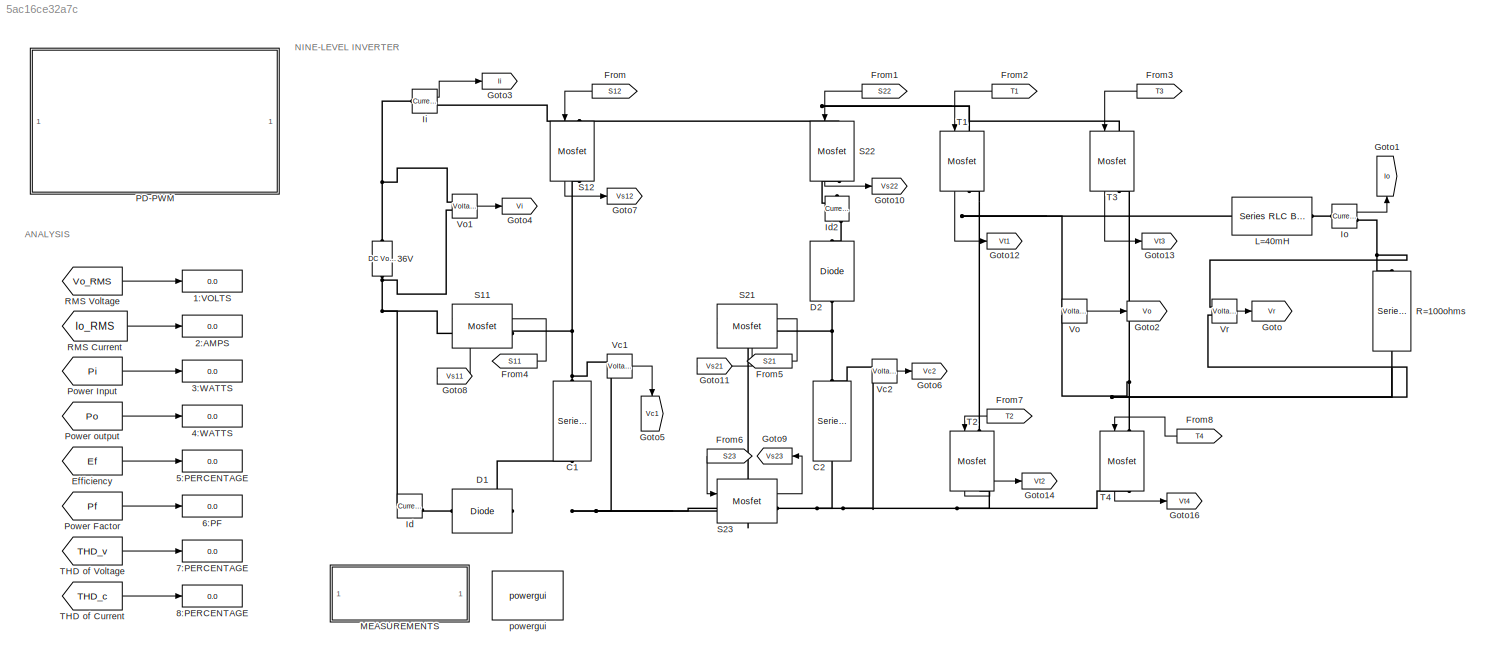
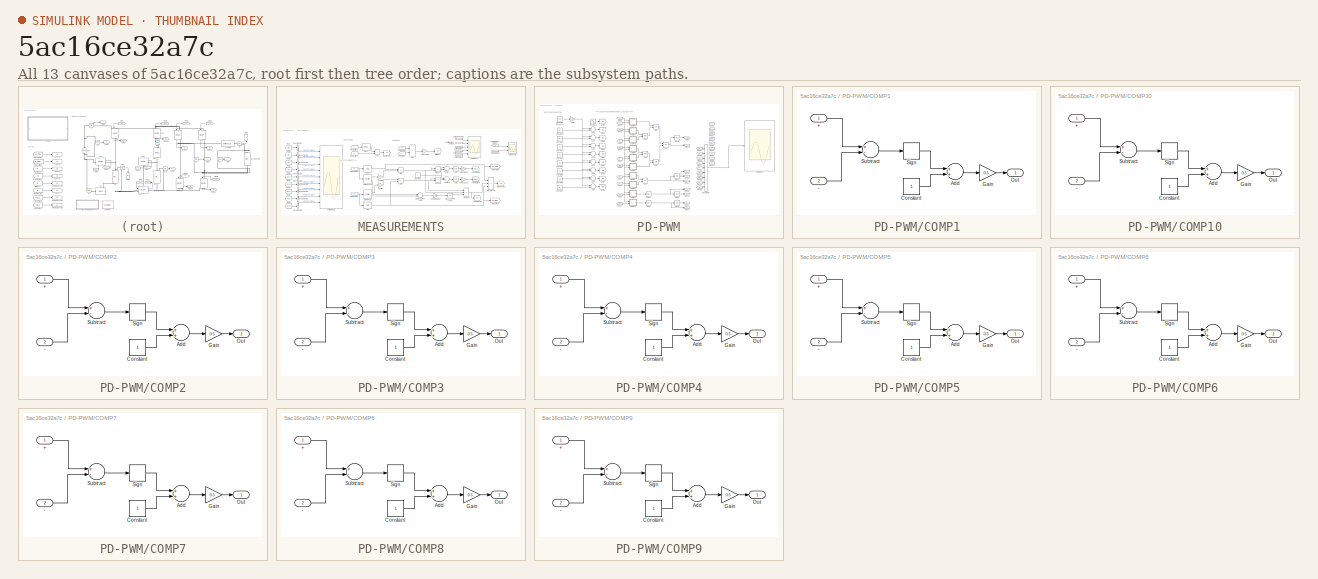
[diagram: thumbnail index - all 13 canvases of the model, root first then tree order]
MODEL slx_5ac16ce32a7c
KIND model
CONFIG AbsTol = auto
CONFIG FixedStep = auto
CONFIG MaxStep = auto
CONFIG MinStep = auto
CONFIG RelTol = 1e-3
CONFIG SampleTimeConstraint = Unconstrained
CONFIG Solver = VariableStepAuto
CONFIG SolverMode = Auto
CONFIG SolverName = VariableStepAuto
CONFIG StartTime = 0.0
CONFIG StopTime = 10
BLOCK [Display] 1:VOLTS
  Decimation = 1
  Ports = [1]
BLOCK [Display] 2:AMPS
  Decimation = 1
  Ports = [1]
BLOCK [Reference] 36V  REF=powerlib/Electrical
Sources/DC Voltage Source
  Ports = [0, 0, 0, 0, 0, 1, 1]
  SourceBlock = powerlib/Electrical\nSources/DC Voltage Source
  SourceType = DC Voltage Source
BLOCK [Display] 3:WATTS
  Decimation = 1
  Ports = [1]
BLOCK [Display] 4:WATTS
  Decimation = 1
  Ports = [1]
BLOCK [Display] 5:PERCENTAGE
  Decimation = 1
  Ports = [1]
BLOCK [Display] 6:PF
  Decimation = 1
  Ports = [1]
BLOCK [Display] 7:PERCENTAGE
  Decimation = 1
  Ports = [1]
BLOCK [Display] 8:PERCENTAGE
  Decimation = 1
  Ports = [1]
BLOCK [Reference] C1  REF=powerlib/Elements/Series RLC Branch
  Ports = [0, 0, 0, 0, 0, 1, 1]
  SourceBlock = powerlib/Elements/Series RLC Branch
  SourceType = Series RLC Branch
BLOCK [Reference] C2  REF=powerlib/Elements/Series RLC Branch
  Ports = [0, 0, 0, 0, 0, 1, 1]
  SourceBlock = powerlib/Elements/Series RLC Branch
  SourceType = Series RLC Branch
BLOCK [Reference] D1  REF=powerlib/Power
Electronics/Diode
  Ports = [0, 0, 0, 0, 0, 1, 1]
  SourceBlock = powerlib/Power\nElectronics/Diode
  SourceType = Diode
BLOCK [Reference] D2  REF=powerlib/Power
Electronics/Diode
  Ports = [0, 0, 0, 0, 0, 1, 1]
  SourceBlock = powerlib/Power\nElectronics/Diode
  SourceType = Diode
BLOCK [From] Efficiency
  GotoTag = Ef
  TagVisibility = global
BLOCK [From] From
  GotoTag = S12
  TagVisibility = global
BLOCK [From] From1
  GotoTag = S22
  TagVisibility = global
BLOCK [From] From2
  GotoTag = T1
  TagVisibility = global
BLOCK [From] From3
  GotoTag = T3
  TagVisibility = global
BLOCK [From] From4
  GotoTag = S11
  TagVisibility = global
BLOCK [From] From5
  GotoTag = S21
  TagVisibility = global
BLOCK [From] From6
  GotoTag = S23
  TagVisibility = global
BLOCK [From] From7
  GotoTag = T2
  TagVisibility = global
BLOCK [From] From8
  GotoTag = T4
  TagVisibility = global
BLOCK [Goto] Goto
  GotoTag = Vr
  TagVisibility = global
BLOCK [Goto] Goto1
  GotoTag = Io
  TagVisibility = global
BLOCK [Goto] Goto10
  GotoTag = Vs22
  TagVisibility = global
BLOCK [Goto] Goto11
  GotoTag = Vs21
  TagVisibility = global
BLOCK [Goto] Goto12
  GotoTag = Vt1
  TagVisibility = global
BLOCK [Goto] Goto13
  GotoTag = Vt3
  TagVisibility = global
BLOCK [Goto] Goto14
  GotoTag = Vt2
  TagVisibility = global
BLOCK [Goto] Goto16
  GotoTag = Vt4
  TagVisibility = global
BLOCK [Goto] Goto2
  GotoTag = Vo
  TagVisibility = global
BLOCK [Goto] Goto3
  GotoTag = Ii
  TagVisibility = global
BLOCK [Goto] Goto4
  GotoTag = Vi
  TagVisibility = global
BLOCK [Goto] Goto5
  GotoTag = Vc1
  TagVisibility = global
BLOCK [Goto] Goto6
  GotoTag = Vc2
  TagVisibility = global
BLOCK [Goto] Goto7
  GotoTag = Vs12
  TagVisibility = global
BLOCK [Goto] Goto8
  GotoTag = Vs11
  TagVisibility = global
BLOCK [Goto] Goto9
  GotoTag = Vs23
  TagVisibility = global
BLOCK [Reference] Id  REF=powerlib/Measurements/Current Measurement
  Ports = [0, 1, 0, 0, 0, 1, 1]
  SourceBlock = powerlib/Measurements/Current Measurement
  SourceType = Current Measurement
  UserDataPersistent = on
BLOCK [Reference] Id2  REF=powerlib/Measurements/Current Measurement
  Ports = [0, 1, 0, 0, 0, 1, 1]
  SourceBlock = powerlib/Measurements/Current Measurement
  SourceType = Current Measurement
  UserDataPersistent = on
BLOCK [Reference] Ii  REF=powerlib/Measurements/Current Measurement
  Ports = [0, 1, 0, 0, 0, 1, 1]
  SourceBlock = powerlib/Measurements/Current Measurement
  SourceType = Current Measurement
  UserDataPersistent = on
BLOCK [Reference] Io  REF=powerlib/Measurements/Current Measurement
  Ports = [0, 1, 0, 0, 0, 1, 1]
  SourceBlock = powerlib/Measurements/Current Measurement
  SourceType = Current Measurement
  UserDataPersistent = on
BLOCK [Reference] L=40mH  REF=powerlib/Elements/Series RLC Branch
  Ports = [0, 0, 0, 0, 0, 1, 1]
  SourceBlock = powerlib/Elements/Series RLC Branch
  SourceType = Series RLC Branch
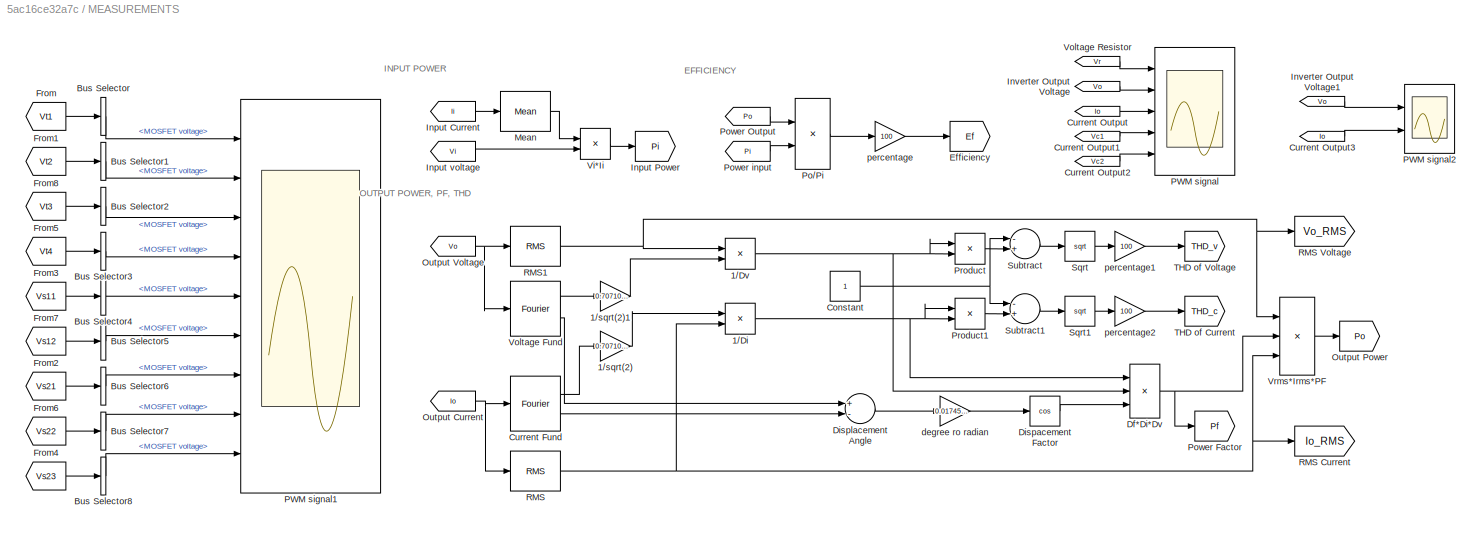
BLOCK [SubSystem] MEASUREMENTS
  Ports = []
  RequestExecContextInheritance = off
  Variant = off
BLOCK [Product] MEASUREMENTS/1//Di
  InputSameDT = off
  Inputs = /*
  OutDataTypeStr = Inherit: Inherit via internal rule
  Ports = [2, 1]
  RndMeth = Floor
  SaturateOnIntegerOverflow = off
BLOCK [Product] MEASUREMENTS/1//Dv
  InputSameDT = off
  Inputs = */
  OutDataTypeStr = Inherit: Inherit via internal rule
  Ports = [2, 1]
  RndMeth = Floor
  SaturateOnIntegerOverflow = off
BLOCK [Gain] MEASUREMENTS/1//sqrt(2)
  Gain = 0.70710678
  OutDataTypeStr = Inherit: Inherit via internal rule
  ParamDataTypeStr = Inherit: Inherit via internal rule
  SaturateOnIntegerOverflow = off
BLOCK [Gain] MEASUREMENTS/1//sqrt(2)1
  Gain = 0.70710678
  OutDataTypeStr = Inherit: Inherit via internal rule
  ParamDataTypeStr = Inherit: Inherit via internal rule
  SaturateOnIntegerOverflow = off
BLOCK [BusSelector] MEASUREMENTS/Bus Selector
  OutputSignals = MOSFET voltage
  Ports = [1, 1]
BLOCK [BusSelector] MEASUREMENTS/Bus Selector1
  OutputSignals = MOSFET voltage
  Ports = [1, 1]
BLOCK [BusSelector] MEASUREMENTS/Bus Selector2
  OutputSignals = MOSFET voltage
  Ports = [1, 1]
BLOCK [BusSelector] MEASUREMENTS/Bus Selector3
  OutputSignals = MOSFET voltage
  Ports = [1, 1]
BLOCK [BusSelector] MEASUREMENTS/Bus Selector4
  OutputSignals = MOSFET voltage
  Ports = [1, 1]
BLOCK [BusSelector] MEASUREMENTS/Bus Selector5
  OutputSignals = MOSFET voltage
  Ports = [1, 1]
BLOCK [BusSelector] MEASUREMENTS/Bus Selector6
  OutputSignals = MOSFET voltage
  Ports = [1, 1]
BLOCK [BusSelector] MEASUREMENTS/Bus Selector7
  OutputSignals = MOSFET voltage
  Ports = [1, 1]
BLOCK [BusSelector] MEASUREMENTS/Bus Selector8
  OutputSignals = MOSFET voltage
  Ports = [1, 1]
BLOCK [Constant] MEASUREMENTS/Constant
BLOCK [Reference] MEASUREMENTS/Current Fund  REF=powerlib_meascontrol/Measurements/Fourier
  Ports = [1, 2]
  SourceBlock = powerlib_meascontrol/Measurements/Fourier
  SourceType = Fourier
BLOCK [From] MEASUREMENTS/Current Output
  GotoTag = Io
  TagVisibility = global
BLOCK [From] MEASUREMENTS/Current Output1
  GotoTag = Vc1
  TagVisibility = global
BLOCK [From] MEASUREMENTS/Current Output2
  GotoTag = Vc2
  TagVisibility = global
BLOCK [From] MEASUREMENTS/Current Output3
  GotoTag = Io
  TagVisibility = global
BLOCK [Product] MEASUREMENTS/Df*Di*Dv
  InputSameDT = off
  Inputs = //*
  OutDataTypeStr = Inherit: Inherit via internal rule
  Ports = [3, 1]
  RndMeth = Floor
  SaturateOnIntegerOverflow = off
BLOCK [Trigonometry] MEASUREMENTS/Dispacement Factor
  Operator = cos
  Ports = [1, 1]
BLOCK [Sum] MEASUREMENTS/Displacement Angle
  InputSameDT = off
  Inputs = +-
  OutDataTypeStr = Inherit: Inherit via internal rule
  Ports = [2, 1]
  SaturateOnIntegerOverflow = off
BLOCK [Goto] MEASUREMENTS/Efficiency
  GotoTag = Ef
  TagVisibility = global
BLOCK [From] MEASUREMENTS/From
  GotoTag = Vt1
  TagVisibility = global
BLOCK [From] MEASUREMENTS/From1
  GotoTag = Vt2
  TagVisibility = global
BLOCK [From] MEASUREMENTS/From2
  GotoTag = Vs21
  TagVisibility = global
BLOCK [From] MEASUREMENTS/From3
  GotoTag = Vs11
  TagVisibility = global
BLOCK [From] MEASUREMENTS/From4
  GotoTag = Vs23
  TagVisibility = global
BLOCK [From] MEASUREMENTS/From5
  GotoTag = Vt4
  TagVisibility = global
BLOCK [From] MEASUREMENTS/From6
  GotoTag = Vs22
  TagVisibility = global
BLOCK [From] MEASUREMENTS/From7
  GotoTag = Vs12
  TagVisibility = global
BLOCK [From] MEASUREMENTS/From8
  GotoTag = Vt3
  TagVisibility = global
BLOCK [From] MEASUREMENTS/Input Current
  GotoTag = Ii
  TagVisibility = global
BLOCK [Goto] MEASUREMENTS/Input Power
  GotoTag = Pi
  TagVisibility = global
BLOCK [From] MEASUREMENTS/Input voltage
  GotoTag = Vi
  TagVisibility = global
BLOCK [From] MEASUREMENTS/Inverter Output Voltage
  GotoTag = Vo
  TagVisibility = global
BLOCK [From] MEASUREMENTS/Inverter Output Voltage1
  GotoTag = Vo
  TagVisibility = global
BLOCK [Reference] MEASUREMENTS/Mean  REF=powerlib_meascontrol/Measurements/Mean
  Ports = [1, 1]
  SourceBlock = powerlib_meascontrol/Measurements/Mean
  SourceType = Mean
BLOCK [From] MEASUREMENTS/Output Current
  GotoTag = Io
  TagVisibility = global
BLOCK [Goto] MEASUREMENTS/Output Power
  GotoTag = Po
  TagVisibility = global
BLOCK [From] MEASUREMENTS/Output Voltage
  GotoTag = Vo
  TagVisibility = global
BLOCK [Scope] MEASUREMENTS/PWM signal
  NumInputPorts = 5
  Ports = [5]
  ScopeSpecificationString = Simulink.scopes.TimeScopeBlockCfg('CurrentConfiguration', extmgr.ConfigurationSet(extmgr.Configuration('Core','General UI',true,'FigureColor',[1 1 1]),extmgr.Configuration('Core','Source UI',true),extmgr.Configuration('Sources','WiredSimulink',true,'DataLoggingVariableName','ffy'),extmgr.Configuration('Visuals','Time Domain',true,'SerializedDisplays',{struct('MinYLimReal','-171.77772','MaxYLimReal...<+4877ch>
BLOCK [Scope] MEASUREMENTS/PWM signal1
  NumInputPorts = 9
  Ports = [9]
  ScopeSpecificationString = Simulink.scopes.TimeScopeBlockCfg('CurrentConfiguration', extmgr.ConfigurationSet(extmgr.Configuration('Core','General UI',true,'FigureColor',[1 1 1]),extmgr.Configuration('Core','Source UI',true),extmgr.Configuration('Sources','WiredSimulink',true,'DataLoggingVariableName','ScopeData1'),extmgr.Configuration('Visuals','Time Domain',true,'SerializedDisplays',{struct('MinYLimReal','-17.54283','MaxYL...<+8087ch>
BLOCK [Scope] MEASUREMENTS/PWM signal2
  NumInputPorts = 2
  Ports = [2]
  ScopeSpecificationString = Simulink.scopes.TimeScopeBlockCfg('CurrentConfiguration', extmgr.ConfigurationSet(extmgr.Configuration('Core','General UI',true,'FigureColor',[1 1 1]),extmgr.Configuration('Core','Source UI',true),extmgr.Configuration('Sources','WiredSimulink',true,'DataLoggingVariableName','FFT','DataLogging',true),extmgr.Configuration('Visuals','Time Domain',true,'SerializedDisplays',{struct('MinYLimReal','-174....<+2389ch>
BLOCK [Product] MEASUREMENTS/Po//Pi
  InputSameDT = off
  Inputs = */
  OutDataTypeStr = Inherit: Inherit via internal rule
  Ports = [2, 1]
  RndMeth = Floor
  SaturateOnIntegerOverflow = off
BLOCK [Goto] MEASUREMENTS/Power Factor
  GotoTag = Pf
  TagVisibility = global
BLOCK [From] MEASUREMENTS/Power Output
  GotoTag = Po
  TagVisibility = global
BLOCK [From] MEASUREMENTS/Power input
  GotoTag = Pi
  TagVisibility = global
BLOCK [Product] MEASUREMENTS/Product
  InputSameDT = off
  OutDataTypeStr = Inherit: Inherit via internal rule
  Ports = [2, 1]
  RndMeth = Floor
  SaturateOnIntegerOverflow = off
BLOCK [Product] MEASUREMENTS/Product1
  InputSameDT = off
  OutDataTypeStr = Inherit: Inherit via internal rule
  Ports = [2, 1]
  RndMeth = Floor
  SaturateOnIntegerOverflow = off
BLOCK [Reference] MEASUREMENTS/RMS  REF=powerlib_meascontrol/Measurements/RMS
  Ports = [1, 1]
  SourceBlock = powerlib_meascontrol/Measurements/RMS
  SourceType = RMS
BLOCK [Goto] MEASUREMENTS/RMS Current
  GotoTag = Io_RMS
  TagVisibility = global
BLOCK [Goto] MEASUREMENTS/RMS Voltage
  GotoTag = Vo_RMS
  TagVisibility = global
BLOCK [Reference] MEASUREMENTS/RMS1  REF=powerlib_meascontrol/Measurements/RMS
  Ports = [1, 1]
  SourceBlock = powerlib_meascontrol/Measurements/RMS
  SourceType = RMS
BLOCK [Sqrt] MEASUREMENTS/Sqrt
BLOCK [Sqrt] MEASUREMENTS/Sqrt1
BLOCK [Sum] MEASUREMENTS/Subtract
  InputSameDT = off
  Inputs = -+
  OutDataTypeStr = Inherit: Inherit via internal rule
  Ports = [2, 1]
  SaturateOnIntegerOverflow = off
BLOCK [Sum] MEASUREMENTS/Subtract1
  InputSameDT = off
  Inputs = -+
  OutDataTypeStr = Inherit: Inherit via internal rule
  Ports = [2, 1]
  SaturateOnIntegerOverflow = off
BLOCK [Goto] MEASUREMENTS/THD of Current
  GotoTag = THD_c
  TagVisibility = global
BLOCK [Goto] MEASUREMENTS/THD of Voltage
  GotoTag = THD_v
  TagVisibility = global
BLOCK [Product] MEASUREMENTS/Vi*Ii
  InputSameDT = off
  OutDataTypeStr = Inherit: Inherit via internal rule
  Ports = [2, 1]
  RndMeth = Floor
  SaturateOnIntegerOverflow = off
BLOCK [Reference] MEASUREMENTS/Voltage Fund  REF=powerlib_meascontrol/Measurements/Fourier
  Ports = [1, 2]
  SourceBlock = powerlib_meascontrol/Measurements/Fourier
  SourceType = Fourier
BLOCK [From] MEASUREMENTS/Voltage Resistor
  GotoTag = Vr
  TagVisibility = global
BLOCK [Product] MEASUREMENTS/Vrms*Irms*PF
  InputSameDT = off
  Inputs = 3
  OutDataTypeStr = Inherit: Inherit via internal rule
  Ports = [3, 1]
  RndMeth = Floor
  SaturateOnIntegerOverflow = off
BLOCK [Gain] MEASUREMENTS/degree ro radian
  Gain = 0.01745329252
  OutDataTypeStr = Inherit: Inherit via internal rule
  ParamDataTypeStr = Inherit: Inherit via internal rule
  SaturateOnIntegerOverflow = off
BLOCK [Gain] MEASUREMENTS/percentage
  Gain = 100
  OutDataTypeStr = Inherit: Inherit via internal rule
  ParamDataTypeStr = Inherit: Inherit via internal rule
  SaturateOnIntegerOverflow = off
BLOCK [Gain] MEASUREMENTS/percentage1
  Gain = 100
  OutDataTypeStr = Inherit: Inherit via internal rule
  ParamDataTypeStr = Inherit: Inherit via internal rule
  SaturateOnIntegerOverflow = off
BLOCK [Gain] MEASUREMENTS/percentage2
  Gain = 100
  OutDataTypeStr = Inherit: Inherit via internal rule
  ParamDataTypeStr = Inherit: Inherit via internal rule
  SaturateOnIntegerOverflow = off
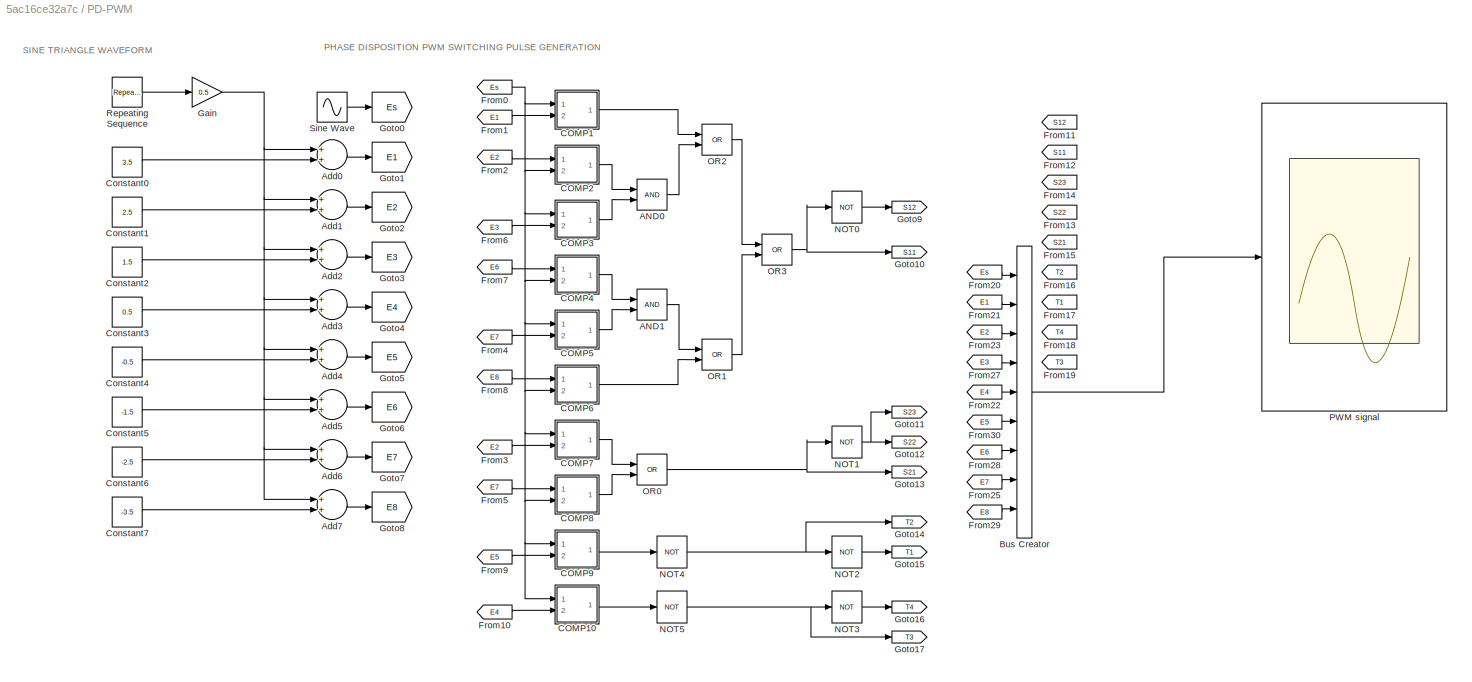
BLOCK [SubSystem] PD-PWM
  Ports = []
  RequestExecContextInheritance = off
  Variant = off
BLOCK [Logic] PD-PWM/AND0
  AllPortsSameDT = off
  OutDataTypeStr = boolean
  Ports = [2, 1]
BLOCK [Logic] PD-PWM/AND1
  AllPortsSameDT = off
  OutDataTypeStr = boolean
  Ports = [2, 1]
BLOCK [Sum] PD-PWM/Add0
  InputSameDT = off
  OutDataTypeStr = Inherit: Inherit via internal rule
  Ports = [2, 1]
  SaturateOnIntegerOverflow = off
BLOCK [Sum] PD-PWM/Add1
  InputSameDT = off
  OutDataTypeStr = Inherit: Inherit via internal rule
  Ports = [2, 1]
  SaturateOnIntegerOverflow = off
BLOCK [Sum] PD-PWM/Add2
  InputSameDT = off
  OutDataTypeStr = Inherit: Inherit via internal rule
  Ports = [2, 1]
  SaturateOnIntegerOverflow = off
BLOCK [Sum] PD-PWM/Add3
  InputSameDT = off
  OutDataTypeStr = Inherit: Inherit via internal rule
  Ports = [2, 1]
  SaturateOnIntegerOverflow = off
BLOCK [Sum] PD-PWM/Add4
  InputSameDT = off
  OutDataTypeStr = Inherit: Inherit via internal rule
  Ports = [2, 1]
  SaturateOnIntegerOverflow = off
BLOCK [Sum] PD-PWM/Add5
  InputSameDT = off
  OutDataTypeStr = Inherit: Inherit via internal rule
  Ports = [2, 1]
  SaturateOnIntegerOverflow = off
BLOCK [Sum] PD-PWM/Add6
  InputSameDT = off
  OutDataTypeStr = Inherit: Inherit via internal rule
  Ports = [2, 1]
  SaturateOnIntegerOverflow = off
BLOCK [Sum] PD-PWM/Add7
  InputSameDT = off
  OutDataTypeStr = Inherit: Inherit via internal rule
  Ports = [2, 1]
  SaturateOnIntegerOverflow = off
BLOCK [BusCreator] PD-PWM/Bus Creator
  DisplayOption = bar
  InheritFromInputs = on
  Inputs = 9
  Ports = [9, 1]
BLOCK [SubSystem] PD-PWM/COMP1
  Ports = [2, 1]
  RequestExecContextInheritance = off
  Variant = off
BLOCK [Inport] PD-PWM/COMP1/+
  IconDisplay = Port number
BLOCK [Inport] PD-PWM/COMP1/-
  IconDisplay = Port number
  Port = 2
BLOCK [Sum] PD-PWM/COMP1/Add
  InputSameDT = off
  OutDataTypeStr = Inherit: Inherit via internal rule
  Ports = [2, 1]
  SaturateOnIntegerOverflow = off
BLOCK [Constant] PD-PWM/COMP1/Constant
BLOCK [Gain] PD-PWM/COMP1/Gain
  Gain = 0.5
  OutDataTypeStr = Inherit: Inherit via internal rule
  ParamDataTypeStr = Inherit: Inherit via internal rule
  SaturateOnIntegerOverflow = off
BLOCK [Outport] PD-PWM/COMP1/Out
  IconDisplay = Port number
BLOCK [Signum] PD-PWM/COMP1/Sign
BLOCK [Sum] PD-PWM/COMP1/Subtract
  InputSameDT = off
  Inputs = +-
  OutDataTypeStr = Inherit: Inherit via internal rule
  Ports = [2, 1]
  SaturateOnIntegerOverflow = off
BLOCK [SubSystem] PD-PWM/COMP10
  Ports = [2, 1]
  RequestExecContextInheritance = off
  Variant = off
BLOCK [Inport] PD-PWM/COMP10/+
  IconDisplay = Port number
BLOCK [Inport] PD-PWM/COMP10/-
  IconDisplay = Port number
  Port = 2
BLOCK [Sum] PD-PWM/COMP10/Add
  InputSameDT = off
  OutDataTypeStr = Inherit: Inherit via internal rule
  Ports = [2, 1]
  SaturateOnIntegerOverflow = off
BLOCK [Constant] PD-PWM/COMP10/Constant
BLOCK [Gain] PD-PWM/COMP10/Gain
  Gain = 0.5
  OutDataTypeStr = Inherit: Inherit via internal rule
  ParamDataTypeStr = Inherit: Inherit via internal rule
  SaturateOnIntegerOverflow = off
BLOCK [Outport] PD-PWM/COMP10/Out
  IconDisplay = Port number
BLOCK [Signum] PD-PWM/COMP10/Sign
BLOCK [Sum] PD-PWM/COMP10/Subtract
  InputSameDT = off
  Inputs = +-
  OutDataTypeStr = Inherit: Inherit via internal rule
  Ports = [2, 1]
  SaturateOnIntegerOverflow = off
BLOCK [SubSystem] PD-PWM/COMP2
  Ports = [2, 1]
  RequestExecContextInheritance = off
  Variant = off
BLOCK [Inport] PD-PWM/COMP2/+
  IconDisplay = Port number
BLOCK [Inport] PD-PWM/COMP2/-
  IconDisplay = Port number
  Port = 2
BLOCK [Sum] PD-PWM/COMP2/Add
  InputSameDT = off
  OutDataTypeStr = Inherit: Inherit via internal rule
  Ports = [2, 1]
  SaturateOnIntegerOverflow = off
BLOCK [Constant] PD-PWM/COMP2/Constant
BLOCK [Gain] PD-PWM/COMP2/Gain
  Gain = 0.5
  OutDataTypeStr = Inherit: Inherit via internal rule
  ParamDataTypeStr = Inherit: Inherit via internal rule
  SaturateOnIntegerOverflow = off
BLOCK [Outport] PD-PWM/COMP2/Out
  IconDisplay = Port number
BLOCK [Signum] PD-PWM/COMP2/Sign
BLOCK [Sum] PD-PWM/COMP2/Subtract
  InputSameDT = off
  Inputs = +-
  OutDataTypeStr = Inherit: Inherit via internal rule
  Ports = [2, 1]
  SaturateOnIntegerOverflow = off
BLOCK [SubSystem] PD-PWM/COMP3
  Ports = [2, 1]
  RequestExecContextInheritance = off
  Variant = off
BLOCK [Inport] PD-PWM/COMP3/+
  IconDisplay = Port number
BLOCK [Inport] PD-PWM/COMP3/-
  IconDisplay = Port number
  Port = 2
BLOCK [Sum] PD-PWM/COMP3/Add
  InputSameDT = off
  OutDataTypeStr = Inherit: Inherit via internal rule
  Ports = [2, 1]
  SaturateOnIntegerOverflow = off
BLOCK [Constant] PD-PWM/COMP3/Constant
BLOCK [Gain] PD-PWM/COMP3/Gain
  Gain = 0.5
  OutDataTypeStr = Inherit: Inherit via internal rule
  ParamDataTypeStr = Inherit: Inherit via internal rule
  SaturateOnIntegerOverflow = off
BLOCK [Outport] PD-PWM/COMP3/Out
  IconDisplay = Port number
BLOCK [Signum] PD-PWM/COMP3/Sign
BLOCK [Sum] PD-PWM/COMP3/Subtract
  InputSameDT = off
  Inputs = +-
  OutDataTypeStr = Inherit: Inherit via internal rule
  Ports = [2, 1]
  SaturateOnIntegerOverflow = off
BLOCK [SubSystem] PD-PWM/COMP4
  Ports = [2, 1]
  RequestExecContextInheritance = off
  Variant = off
BLOCK [Inport] PD-PWM/COMP4/+
  IconDisplay = Port number
BLOCK [Inport] PD-PWM/COMP4/-
  IconDisplay = Port number
  Port = 2
BLOCK [Sum] PD-PWM/COMP4/Add
  InputSameDT = off
  OutDataTypeStr = Inherit: Inherit via internal rule
  Ports = [2, 1]
  SaturateOnIntegerOverflow = off
BLOCK [Constant] PD-PWM/COMP4/Constant
BLOCK [Gain] PD-PWM/COMP4/Gain
  Gain = 0.5
  OutDataTypeStr = Inherit: Inherit via internal rule
  ParamDataTypeStr = Inherit: Inherit via internal rule
  SaturateOnIntegerOverflow = off
BLOCK [Outport] PD-PWM/COMP4/Out
  IconDisplay = Port number
BLOCK [Signum] PD-PWM/COMP4/Sign
BLOCK [Sum] PD-PWM/COMP4/Subtract
  InputSameDT = off
  Inputs = +-
  OutDataTypeStr = Inherit: Inherit via internal rule
  Ports = [2, 1]
  SaturateOnIntegerOverflow = off
BLOCK [SubSystem] PD-PWM/COMP5
  Ports = [2, 1]
  RequestExecContextInheritance = off
  Variant = off
BLOCK [Inport] PD-PWM/COMP5/+
  IconDisplay = Port number
BLOCK [Inport] PD-PWM/COMP5/-
  IconDisplay = Port number
  Port = 2
BLOCK [Sum] PD-PWM/COMP5/Add
  InputSameDT = off
  OutDataTypeStr = Inherit: Inherit via internal rule
  Ports = [2, 1]
  SaturateOnIntegerOverflow = off
BLOCK [Constant] PD-PWM/COMP5/Constant
BLOCK [Gain] PD-PWM/COMP5/Gain
  Gain = 0.5
  OutDataTypeStr = Inherit: Inherit via internal rule
  ParamDataTypeStr = Inherit: Inherit via internal rule
  SaturateOnIntegerOverflow = off
BLOCK [Outport] PD-PWM/COMP5/Out
  IconDisplay = Port number
BLOCK [Signum] PD-PWM/COMP5/Sign
BLOCK [Sum] PD-PWM/COMP5/Subtract
  InputSameDT = off
  Inputs = +-
  OutDataTypeStr = Inherit: Inherit via internal rule
  Ports = [2, 1]
  SaturateOnIntegerOverflow = off
BLOCK [SubSystem] PD-PWM/COMP6
  Ports = [2, 1]
  RequestExecContextInheritance = off
  Variant = off
BLOCK [Inport] PD-PWM/COMP6/+
  IconDisplay = Port number
BLOCK [Inport] PD-PWM/COMP6/-
  IconDisplay = Port number
  Port = 2
BLOCK [Sum] PD-PWM/COMP6/Add
  InputSameDT = off
  OutDataTypeStr = Inherit: Inherit via internal rule
  Ports = [2, 1]
  SaturateOnIntegerOverflow = off
BLOCK [Constant] PD-PWM/COMP6/Constant
BLOCK [Gain] PD-PWM/COMP6/Gain
  Gain = 0.5
  OutDataTypeStr = Inherit: Inherit via internal rule
  ParamDataTypeStr = Inherit: Inherit via internal rule
  SaturateOnIntegerOverflow = off
BLOCK [Outport] PD-PWM/COMP6/Out
  IconDisplay = Port number
BLOCK [Signum] PD-PWM/COMP6/Sign
BLOCK [Sum] PD-PWM/COMP6/Subtract
  InputSameDT = off
  Inputs = +-
  OutDataTypeStr = Inherit: Inherit via internal rule
  Ports = [2, 1]
  SaturateOnIntegerOverflow = off
BLOCK [SubSystem] PD-PWM/COMP7
  Ports = [2, 1]
  RequestExecContextInheritance = off
  Variant = off
BLOCK [Inport] PD-PWM/COMP7/+
  IconDisplay = Port number
BLOCK [Inport] PD-PWM/COMP7/-
  IconDisplay = Port number
  Port = 2
BLOCK [Sum] PD-PWM/COMP7/Add
  InputSameDT = off
  OutDataTypeStr = Inherit: Inherit via internal rule
  Ports = [2, 1]
  SaturateOnIntegerOverflow = off
BLOCK [Constant] PD-PWM/COMP7/Constant
BLOCK [Gain] PD-PWM/COMP7/Gain
  Gain = 0.5
  OutDataTypeStr = Inherit: Inherit via internal rule
  ParamDataTypeStr = Inherit: Inherit via internal rule
  SaturateOnIntegerOverflow = off
BLOCK [Outport] PD-PWM/COMP7/Out
  IconDisplay = Port number
BLOCK [Signum] PD-PWM/COMP7/Sign
BLOCK [Sum] PD-PWM/COMP7/Subtract
  InputSameDT = off
  Inputs = +-
  OutDataTypeStr = Inherit: Inherit via internal rule
  Ports = [2, 1]
  SaturateOnIntegerOverflow = off
BLOCK [SubSystem] PD-PWM/COMP8
  Ports = [2, 1]
  RequestExecContextInheritance = off
  Variant = off
BLOCK [Inport] PD-PWM/COMP8/+
  IconDisplay = Port number
BLOCK [Inport] PD-PWM/COMP8/-
  IconDisplay = Port number
  Port = 2
BLOCK [Sum] PD-PWM/COMP8/Add
  InputSameDT = off
  OutDataTypeStr = Inherit: Inherit via internal rule
  Ports = [2, 1]
  SaturateOnIntegerOverflow = off
BLOCK [Constant] PD-PWM/COMP8/Constant
BLOCK [Gain] PD-PWM/COMP8/Gain
  Gain = 0.5
  OutDataTypeStr = Inherit: Inherit via internal rule
  ParamDataTypeStr = Inherit: Inherit via internal rule
  SaturateOnIntegerOverflow = off
BLOCK [Outport] PD-PWM/COMP8/Out
  IconDisplay = Port number
BLOCK [Signum] PD-PWM/COMP8/Sign
BLOCK [Sum] PD-PWM/COMP8/Subtract
  InputSameDT = off
  Inputs = +-
  OutDataTypeStr = Inherit: Inherit via internal rule
  Ports = [2, 1]
  SaturateOnIntegerOverflow = off
BLOCK [SubSystem] PD-PWM/COMP9
  Ports = [2, 1]
  RequestExecContextInheritance = off
  Variant = off
BLOCK [Inport] PD-PWM/COMP9/+
  IconDisplay = Port number
BLOCK [Inport] PD-PWM/COMP9/-
  IconDisplay = Port number
  Port = 2
BLOCK [Sum] PD-PWM/COMP9/Add
  InputSameDT = off
  OutDataTypeStr = Inherit: Inherit via internal rule
  Ports = [2, 1]
  SaturateOnIntegerOverflow = off
BLOCK [Constant] PD-PWM/COMP9/Constant
BLOCK [Gain] PD-PWM/COMP9/Gain
  Gain = 0.5
  OutDataTypeStr = Inherit: Inherit via internal rule
  ParamDataTypeStr = Inherit: Inherit via internal rule
  SaturateOnIntegerOverflow = off
BLOCK [Outport] PD-PWM/COMP9/Out
  IconDisplay = Port number
BLOCK [Signum] PD-PWM/COMP9/Sign
BLOCK [Sum] PD-PWM/COMP9/Subtract
  InputSameDT = off
  Inputs = +-
  OutDataTypeStr = Inherit: Inherit via internal rule
  Ports = [2, 1]
  SaturateOnIntegerOverflow = off
BLOCK [Constant] PD-PWM/Constant0
  Value = 3.5
BLOCK [Constant] PD-PWM/Constant1
  Value = 2.5
BLOCK [Constant] PD-PWM/Constant2
  Value = 1.5
BLOCK [Constant] PD-PWM/Constant3
  Value = 0.5
BLOCK [Constant] PD-PWM/Constant4
  Value = -0.5
BLOCK [Constant] PD-PWM/Constant5
  Value = -1.5
BLOCK [Constant] PD-PWM/Constant6
  Value = -2.5
BLOCK [Constant] PD-PWM/Constant7
  Value = -3.5
BLOCK [From] PD-PWM/From0
  GotoTag = Es
  TagVisibility = global
BLOCK [From] PD-PWM/From1
  GotoTag = E1
  TagVisibility = global
BLOCK [From] PD-PWM/From10
  GotoTag = E4
  TagVisibility = global
BLOCK [From] PD-PWM/From11
  GotoTag = S12
  TagVisibility = global
BLOCK [From] PD-PWM/From12
  GotoTag = S11
  TagVisibility = global
BLOCK [From] PD-PWM/From13
  GotoTag = S22
  TagVisibility = global
BLOCK [From] PD-PWM/From14
  GotoTag = S23
  TagVisibility = global
BLOCK [From] PD-PWM/From15
  GotoTag = S21
  TagVisibility = global
BLOCK [From] PD-PWM/From16
  GotoTag = T2
  TagVisibility = global
BLOCK [From] PD-PWM/From17
  GotoTag = T1
  TagVisibility = global
BLOCK [From] PD-PWM/From18
  GotoTag = T4
  TagVisibility = global
BLOCK [From] PD-PWM/From19
  GotoTag = T3
  TagVisibility = global
BLOCK [From] PD-PWM/From2
  GotoTag = E2
  TagVisibility = global
BLOCK [From] PD-PWM/From20
  GotoTag = Es
  TagVisibility = global
BLOCK [From] PD-PWM/From21
  GotoTag = E1
  TagVisibility = global
BLOCK [From] PD-PWM/From22
  GotoTag = E4
  TagVisibility = global
BLOCK [From] PD-PWM/From23
  GotoTag = E2
  TagVisibility = global
BLOCK [From] PD-PWM/From25
  GotoTag = E7
  TagVisibility = global
BLOCK [From] PD-PWM/From27
  GotoTag = E3
  TagVisibility = global
BLOCK [From] PD-PWM/From28
  GotoTag = E6
  TagVisibility = global
BLOCK [From] PD-PWM/From29
  GotoTag = E8
  TagVisibility = global
BLOCK [From] PD-PWM/From3
  GotoTag = E2
  TagVisibility = global
BLOCK [From] PD-PWM/From30
  GotoTag = E5
  TagVisibility = global
BLOCK [From] PD-PWM/From4
  GotoTag = E7
  TagVisibility = global
BLOCK [From] PD-PWM/From5
  GotoTag = E7
  TagVisibility = global
BLOCK [From] PD-PWM/From6
  GotoTag = E3
  TagVisibility = global
BLOCK [From] PD-PWM/From7
  GotoTag = E6
  TagVisibility = global
BLOCK [From] PD-PWM/From8
  GotoTag = E8
  TagVisibility = global
BLOCK [From] PD-PWM/From9
  GotoTag = E5
  TagVisibility = global
BLOCK [Gain] PD-PWM/Gain
  Gain = 0.5
  OutDataTypeStr = Inherit: Inherit via internal rule
  ParamDataTypeStr = Inherit: Inherit via internal rule
  SaturateOnIntegerOverflow = off
BLOCK [Goto] PD-PWM/Goto0
  GotoTag = Es
  TagVisibility = global
BLOCK [Goto] PD-PWM/Goto1
  GotoTag = E1
  TagVisibility = global
BLOCK [Goto] PD-PWM/Goto10
  GotoTag = S11
  TagVisibility = global
BLOCK [Goto] PD-PWM/Goto11
  GotoTag = S23
  TagVisibility = global
BLOCK [Goto] PD-PWM/Goto12
  GotoTag = S22
  TagVisibility = global
BLOCK [Goto] PD-PWM/Goto13
  GotoTag = S21
  TagVisibility = global
BLOCK [Goto] PD-PWM/Goto14
  GotoTag = T2
  TagVisibility = global
BLOCK [Goto] PD-PWM/Goto15
  GotoTag = T1
  TagVisibility = global
BLOCK [Goto] PD-PWM/Goto16
  GotoTag = T4
  TagVisibility = global
BLOCK [Goto] PD-PWM/Goto17
  GotoTag = T3
  TagVisibility = global
BLOCK [Goto] PD-PWM/Goto2
  GotoTag = E2
  TagVisibility = global
BLOCK [Goto] PD-PWM/Goto3
  GotoTag = E3
  TagVisibility = global
BLOCK [Goto] PD-PWM/Goto4
  GotoTag = E4
  TagVisibility = global
BLOCK [Goto] PD-PWM/Goto5
  GotoTag = E5
  TagVisibility = global
BLOCK [Goto] PD-PWM/Goto6
  GotoTag = E6
  TagVisibility = global
BLOCK [Goto] PD-PWM/Goto7
  GotoTag = E7
  TagVisibility = global
BLOCK [Goto] PD-PWM/Goto8
  GotoTag = E8
  TagVisibility = global
BLOCK [Goto] PD-PWM/Goto9
  GotoTag = S12
  TagVisibility = global
BLOCK [Logic] PD-PWM/NOT0
  AllPortsSameDT = off
  Operator = NOT
  OutDataTypeStr = boolean
  Ports = [1, 1]
BLOCK [Logic] PD-PWM/NOT1
  AllPortsSameDT = off
  Operator = NOT
  OutDataTypeStr = boolean
  Ports = [1, 1]
BLOCK [Logic] PD-PWM/NOT2
  AllPortsSameDT = off
  Operator = NOT
  OutDataTypeStr = boolean
  Ports = [1, 1]
BLOCK [Logic] PD-PWM/NOT3
  AllPortsSameDT = off
  Operator = NOT
  OutDataTypeStr = boolean
  Ports = [1, 1]
BLOCK [Logic] PD-PWM/NOT4
  AllPortsSameDT = off
  Operator = NOT
  OutDataTypeStr = boolean
  Ports = [1, 1]
BLOCK [Logic] PD-PWM/NOT5
  AllPortsSameDT = off
  Operator = NOT
  OutDataTypeStr = boolean
  Ports = [1, 1]
BLOCK [Logic] PD-PWM/OR0
  AllPortsSameDT = off
  Operator = OR
  OutDataTypeStr = boolean
  Ports = [2, 1]
BLOCK [Logic] PD-PWM/OR1
  AllPortsSameDT = off
  Operator = OR
  OutDataTypeStr = boolean
  Ports = [2, 1]
BLOCK [Logic] PD-PWM/OR2
  AllPortsSameDT = off
  Operator = OR
  OutDataTypeStr = boolean
  Ports = [2, 1]
BLOCK [Logic] PD-PWM/OR3
  AllPortsSameDT = off
  Operator = OR
  OutDataTypeStr = boolean
  Ports = [2, 1]
BLOCK [Scope] PD-PWM/PWM signal
  Ports = [1]
  ScopeSpecificationString = Simulink.scopes.TimeScopeBlockCfg('CurrentConfiguration', extmgr.ConfigurationSet(extmgr.Configuration('Core','General UI',true,'FigureColor',[1 1 1]),extmgr.Configuration('Core','Source UI',true),extmgr.Configuration('Sources','WiredSimulink',true,'DataLoggingVariableName','ScopeData1'),extmgr.Configuration('Visuals','Time Domain',true,'SerializedDisplays',{struct('MinYLimReal','-5.00000','MaxYLi...<+2600ch>
BLOCK [Reference] PD-PWM/Repeating Sequence  REF=simulink/Sources/Repeating
Sequence
  Ports = [0, 1]
  SourceBlock = simulink/Sources/Repeating\nSequence
  SourceType = Repeating table
BLOCK [Sin] PD-PWM/Sine Wave
  Amplitude = 4
  Frequency = 2*pi*50
  Ports = [0, 1]
  SampleTime = 0
BLOCK [From] Power Factor
  GotoTag = Pf
  TagVisibility = global
BLOCK [From] Power Input
  GotoTag = Pi
  TagVisibility = global
BLOCK [From] Power output
  GotoTag = Po
  TagVisibility = global
BLOCK [Reference] R=100ohms  REF=powerlib/Elements/Series RLC Branch
  Ports = [0, 0, 0, 0, 0, 1, 1]
  SourceBlock = powerlib/Elements/Series RLC Branch
  SourceType = Series RLC Branch
BLOCK [From] RMS Current
  GotoTag = Io_RMS
  TagVisibility = global
BLOCK [From] RMS Voltage
  GotoTag = Vo_RMS
  TagVisibility = global
BLOCK [Reference] S11  REF=powerlib/Power
Electronics/Mosfet
  Ports = [1, 1, 0, 0, 0, 1, 1]
  SourceBlock = powerlib/Power\nElectronics/Mosfet
  SourceType = Mosfet
BLOCK [Reference] S12  REF=powerlib/Power
Electronics/Mosfet
  Ports = [1, 1, 0, 0, 0, 1, 1]
  SourceBlock = powerlib/Power\nElectronics/Mosfet
  SourceType = Mosfet
BLOCK [Reference] S21  REF=powerlib/Power
Electronics/Mosfet
  Ports = [1, 1, 0, 0, 0, 1, 1]
  SourceBlock = powerlib/Power\nElectronics/Mosfet
  SourceType = Mosfet
BLOCK [Reference] S22  REF=powerlib/Power
Electronics/Mosfet
  Ports = [1, 1, 0, 0, 0, 1, 1]
  SourceBlock = powerlib/Power\nElectronics/Mosfet
  SourceType = Mosfet
BLOCK [Reference] S23  REF=powerlib/Power
Electronics/Mosfet
  Ports = [1, 1, 0, 0, 0, 1, 1]
  SourceBlock = powerlib/Power\nElectronics/Mosfet
  SourceType = Mosfet
BLOCK [Reference] T1  REF=powerlib/Power
Electronics/Mosfet
  Ports = [1, 1, 0, 0, 0, 1, 1]
  SourceBlock = powerlib/Power\nElectronics/Mosfet
  SourceType = Mosfet
BLOCK [Reference] T2  REF=powerlib/Power
Electronics/Mosfet
  Ports = [1, 1, 0, 0, 0, 1, 1]
  SourceBlock = powerlib/Power\nElectronics/Mosfet
  SourceType = Mosfet
BLOCK [Reference] T3  REF=powerlib/Power
Electronics/Mosfet
  Ports = [1, 1, 0, 0, 0, 1, 1]
  SourceBlock = powerlib/Power\nElectronics/Mosfet
  SourceType = Mosfet
BLOCK [Reference] T4  REF=powerlib/Power
Electronics/Mosfet
  Ports = [1, 1, 0, 0, 0, 1, 1]
  SourceBlock = powerlib/Power\nElectronics/Mosfet
  SourceType = Mosfet
BLOCK [From] THD of Current
  GotoTag = THD_c
  TagVisibility = global
BLOCK [From] THD of Voltage
  GotoTag = THD_v
  TagVisibility = global
BLOCK [Reference] Vc1  REF=powerlib/Measurements/Voltage Measurement
  Ports = [0, 1, 0, 0, 0, 2]
  SourceBlock = powerlib/Measurements/Voltage Measurement
  SourceType = Voltage Measurement
  UserDataPersistent = on
BLOCK [Reference] Vc2  REF=powerlib/Measurements/Voltage Measurement
  Ports = [0, 1, 0, 0, 0, 2]
  SourceBlock = powerlib/Measurements/Voltage Measurement
  SourceType = Voltage Measurement
  UserDataPersistent = on
BLOCK [Reference] Vo  REF=powerlib/Measurements/Voltage Measurement
  Ports = [0, 1, 0, 0, 0, 2]
  SourceBlock = powerlib/Measurements/Voltage Measurement
  SourceType = Voltage Measurement
  UserDataPersistent = on
BLOCK [Reference] Vo1  REF=powerlib/Measurements/Voltage Measurement
  Ports = [0, 1, 0, 0, 0, 2]
  SourceBlock = powerlib/Measurements/Voltage Measurement
  SourceType = Voltage Measurement
  UserDataPersistent = on
BLOCK [Reference] Vr  REF=powerlib/Measurements/Voltage Measurement
  Ports = [0, 1, 0, 0, 0, 2]
  SourceBlock = powerlib/Measurements/Voltage Measurement
  SourceType = Voltage Measurement
  UserDataPersistent = on
BLOCK [Reference] powergui  REF=powerlib/powergui
  Ports = []
  Priority = 1
  SourceBlock = powerlib/powergui
  SourceType = PSB option menu block
  UserDataPersistent = on
ANNOTATION (root): ANALYSIS
ANNOTATION (root): NINE-LEVEL INVERTER
ANNOTATION MEASUREMENTS: EFFICIENCY
ANNOTATION MEASUREMENTS: INPUT POWER
ANNOTATION MEASUREMENTS: OUTPUT POWER, PF, THD
ANNOTATION PD-PWM: PHASE DISPOSITION PWM SWITCHING PULSE GENERATION
ANNOTATION PD-PWM: SINE TRIANGLE WAVEFORM
LINE Efficiency:1 -> 5:PERCENTAGE:1
LINE From1:1 -> S22:1
LINE From2:1 -> T1:1
LINE From3:1 -> T3:1
LINE From4:1 -> S11:1
LINE From5:1 -> S21:1
LINE From6:1 -> S23:1
LINE From7:1 -> T2:1
LINE From8:1 -> T4:1
LINE From:1 -> S12:1
LINE Ii:1 -> Goto3:1
LINE Io:1 -> Goto1:1
NET MEASUREMENTS/1//Di:1 -> MEASUREMENTS/Df*Di*Dv:1, MEASUREMENTS/Product1:1, MEASUREMENTS/Product1:2
NET MEASUREMENTS/1//Dv:1 -> MEASUREMENTS/Df*Di*Dv:2, MEASUREMENTS/Product:1, MEASUREMENTS/Product:2
LINE MEASUREMENTS/1//sqrt(2)1:1 -> MEASUREMENTS/1//Dv:2
LINE MEASUREMENTS/1//sqrt(2):1 -> MEASUREMENTS/1//Di:1
LINE MEASUREMENTS/Bus Selector1:1 -> MEASUREMENTS/PWM signal1:2
LINE MEASUREMENTS/Bus Selector2:1 -> MEASUREMENTS/PWM signal1:3
LINE MEASUREMENTS/Bus Selector3:1 -> MEASUREMENTS/PWM signal1:4
LINE MEASUREMENTS/Bus Selector4:1 -> MEASUREMENTS/PWM signal1:5
LINE MEASUREMENTS/Bus Selector5:1 -> MEASUREMENTS/PWM signal1:6
LINE MEASUREMENTS/Bus Selector6:1 -> MEASUREMENTS/PWM signal1:7
LINE MEASUREMENTS/Bus Selector7:1 -> MEASUREMENTS/PWM signal1:8
LINE MEASUREMENTS/Bus Selector8:1 -> MEASUREMENTS/PWM signal1:9
LINE MEASUREMENTS/Bus Selector:1 -> MEASUREMENTS/PWM signal1:1
NET MEASUREMENTS/Constant:1 -> MEASUREMENTS/Subtract1:1, MEASUREMENTS/Subtract:1
LINE MEASUREMENTS/Current Fund:1 -> MEASUREMENTS/1//sqrt(2):1
LINE MEASUREMENTS/Current Fund:2 -> MEASUREMENTS/Displacement Angle:2
LINE MEASUREMENTS/Current Output1:1 -> MEASUREMENTS/PWM signal:4
LINE MEASUREMENTS/Current Output2:1 -> MEASUREMENTS/PWM signal:5
LINE MEASUREMENTS/Current Output3:1 -> MEASUREMENTS/PWM signal2:2
LINE MEASUREMENTS/Current Output:1 -> MEASUREMENTS/PWM signal:3
NET MEASUREMENTS/Df*Di*Dv:1 -> MEASUREMENTS/Power Factor:1, MEASUREMENTS/Vrms*Irms*PF:2
LINE MEASUREMENTS/Dispacement Factor:1 -> MEASUREMENTS/Df*Di*Dv:3
LINE MEASUREMENTS/Displacement Angle:1 -> MEASUREMENTS/degree ro radian:1
LINE MEASUREMENTS/From1:1 -> MEASUREMENTS/Bus Selector1:1
LINE MEASUREMENTS/From2:1 -> MEASUREMENTS/Bus Selector6:1
LINE MEASUREMENTS/From3:1 -> MEASUREMENTS/Bus Selector4:1
LINE MEASUREMENTS/From4:1 -> MEASUREMENTS/Bus Selector8:1
LINE MEASUREMENTS/From5:1 -> MEASUREMENTS/Bus Selector3:1
LINE MEASUREMENTS/From6:1 -> MEASUREMENTS/Bus Selector7:1
LINE MEASUREMENTS/From7:1 -> MEASUREMENTS/Bus Selector5:1
LINE MEASUREMENTS/From8:1 -> MEASUREMENTS/Bus Selector2:1
LINE MEASUREMENTS/From:1 -> MEASUREMENTS/Bus Selector:1
LINE MEASUREMENTS/Input Current:1 -> MEASUREMENTS/Mean:1
LINE MEASUREMENTS/Input voltage:1 -> MEASUREMENTS/Vi*Ii:2
LINE MEASUREMENTS/Inverter Output Voltage1:1 -> MEASUREMENTS/PWM signal2:1
LINE MEASUREMENTS/Inverter Output Voltage:1 -> MEASUREMENTS/PWM signal:2
LINE MEASUREMENTS/Mean:1 -> MEASUREMENTS/Vi*Ii:1
NET MEASUREMENTS/Output Current:1 -> MEASUREMENTS/Current Fund:1, MEASUREMENTS/RMS:1
NET MEASUREMENTS/Output Voltage:1 -> MEASUREMENTS/RMS1:1, MEASUREMENTS/Voltage Fund:1
LINE MEASUREMENTS/Po//Pi:1 -> MEASUREMENTS/percentage:1
LINE MEASUREMENTS/Power Output:1 -> MEASUREMENTS/Po//Pi:1
LINE MEASUREMENTS/Power input:1 -> MEASUREMENTS/Po//Pi:2
LINE MEASUREMENTS/Product1:1 -> MEASUREMENTS/Subtract1:2
LINE MEASUREMENTS/Product:1 -> MEASUREMENTS/Subtract:2
NET MEASUREMENTS/RMS1:1 -> MEASUREMENTS/1//Dv:1, MEASUREMENTS/RMS Voltage:1, MEASUREMENTS/Vrms*Irms*PF:1
NET MEASUREMENTS/RMS:1 -> MEASUREMENTS/1//Di:2, MEASUREMENTS/RMS Current:1, MEASUREMENTS/Vrms*Irms*PF:3
LINE MEASUREMENTS/Sqrt1:1 -> MEASUREMENTS/percentage2:1
LINE MEASUREMENTS/Sqrt:1 -> MEASUREMENTS/percentage1:1
LINE MEASUREMENTS/Subtract1:1 -> MEASUREMENTS/Sqrt1:1
LINE MEASUREMENTS/Subtract:1 -> MEASUREMENTS/Sqrt:1
LINE MEASUREMENTS/Vi*Ii:1 -> MEASUREMENTS/Input Power:1
LINE MEASUREMENTS/Voltage Fund:1 -> MEASUREMENTS/1//sqrt(2)1:1
LINE MEASUREMENTS/Voltage Fund:2 -> MEASUREMENTS/Displacement Angle:1
LINE MEASUREMENTS/Voltage Resistor:1 -> MEASUREMENTS/PWM signal:1
LINE MEASUREMENTS/Vrms*Irms*PF:1 -> MEASUREMENTS/Output Power:1
LINE MEASUREMENTS/degree ro radian:1 -> MEASUREMENTS/Dispacement Factor:1
LINE MEASUREMENTS/percentage1:1 -> MEASUREMENTS/THD of Voltage:1
LINE MEASUREMENTS/percentage2:1 -> MEASUREMENTS/THD of Current:1
LINE MEASUREMENTS/percentage:1 -> MEASUREMENTS/Efficiency:1
LINE PD-PWM/AND0:1 -> PD-PWM/OR2:2
LINE PD-PWM/AND1:1 -> PD-PWM/OR1:1
LINE PD-PWM/Add0:1 -> PD-PWM/Goto1:1
LINE PD-PWM/Add1:1 -> PD-PWM/Goto2:1
LINE PD-PWM/Add2:1 -> PD-PWM/Goto3:1
LINE PD-PWM/Add3:1 -> PD-PWM/Goto4:1
LINE PD-PWM/Add4:1 -> PD-PWM/Goto5:1
LINE PD-PWM/Add5:1 -> PD-PWM/Goto6:1
LINE PD-PWM/Add6:1 -> PD-PWM/Goto7:1
LINE PD-PWM/Add7:1 -> PD-PWM/Goto8:1
LINE PD-PWM/Bus Creator:1 -> PD-PWM/PWM signal:1
LINE PD-PWM/COMP1/+:1 -> PD-PWM/COMP1/Subtract:1
LINE PD-PWM/COMP1/-:1 -> PD-PWM/COMP1/Subtract:2
LINE PD-PWM/COMP1/Add:1 -> PD-PWM/COMP1/Gain:1
LINE PD-PWM/COMP1/Constant:1 -> PD-PWM/COMP1/Add:2
LINE PD-PWM/COMP1/Gain:1 -> PD-PWM/COMP1/Out:1
LINE PD-PWM/COMP1/Sign:1 -> PD-PWM/COMP1/Add:1
LINE PD-PWM/COMP1/Subtract:1 -> PD-PWM/COMP1/Sign:1
LINE PD-PWM/COMP10/+:1 -> PD-PWM/COMP10/Subtract:1
LINE PD-PWM/COMP10/-:1 -> PD-PWM/COMP10/Subtract:2
LINE PD-PWM/COMP10/Add:1 -> PD-PWM/COMP10/Gain:1
LINE PD-PWM/COMP10/Constant:1 -> PD-PWM/COMP10/Add:2
LINE PD-PWM/COMP10/Gain:1 -> PD-PWM/COMP10/Out:1
LINE PD-PWM/COMP10/Sign:1 -> PD-PWM/COMP10/Add:1
LINE PD-PWM/COMP10/Subtract:1 -> PD-PWM/COMP10/Sign:1
LINE PD-PWM/COMP10:1 -> PD-PWM/NOT5:1
LINE PD-PWM/COMP1:1 -> PD-PWM/OR2:1
LINE PD-PWM/COMP2/+:1 -> PD-PWM/COMP2/Subtract:1
LINE PD-PWM/COMP2/-:1 -> PD-PWM/COMP2/Subtract:2
LINE PD-PWM/COMP2/Add:1 -> PD-PWM/COMP2/Gain:1
LINE PD-PWM/COMP2/Constant:1 -> PD-PWM/COMP2/Add:2
LINE PD-PWM/COMP2/Gain:1 -> PD-PWM/COMP2/Out:1
LINE PD-PWM/COMP2/Sign:1 -> PD-PWM/COMP2/Add:1
LINE PD-PWM/COMP2/Subtract:1 -> PD-PWM/COMP2/Sign:1
LINE PD-PWM/COMP2:1 -> PD-PWM/AND0:1
LINE PD-PWM/COMP3/+:1 -> PD-PWM/COMP3/Subtract:1
LINE PD-PWM/COMP3/-:1 -> PD-PWM/COMP3/Subtract:2
LINE PD-PWM/COMP3/Add:1 -> PD-PWM/COMP3/Gain:1
LINE PD-PWM/COMP3/Constant:1 -> PD-PWM/COMP3/Add:2
LINE PD-PWM/COMP3/Gain:1 -> PD-PWM/COMP3/Out:1
LINE PD-PWM/COMP3/Sign:1 -> PD-PWM/COMP3/Add:1
LINE PD-PWM/COMP3/Subtract:1 -> PD-PWM/COMP3/Sign:1
LINE PD-PWM/COMP3:1 -> PD-PWM/AND0:2
LINE PD-PWM/COMP4/+:1 -> PD-PWM/COMP4/Subtract:1
LINE PD-PWM/COMP4/-:1 -> PD-PWM/COMP4/Subtract:2
LINE PD-PWM/COMP4/Add:1 -> PD-PWM/COMP4/Gain:1
LINE PD-PWM/COMP4/Constant:1 -> PD-PWM/COMP4/Add:2
LINE PD-PWM/COMP4/Gain:1 -> PD-PWM/COMP4/Out:1
LINE PD-PWM/COMP4/Sign:1 -> PD-PWM/COMP4/Add:1
LINE PD-PWM/COMP4/Subtract:1 -> PD-PWM/COMP4/Sign:1
LINE PD-PWM/COMP4:1 -> PD-PWM/AND1:1
LINE PD-PWM/COMP5/+:1 -> PD-PWM/COMP5/Subtract:1
LINE PD-PWM/COMP5/-:1 -> PD-PWM/COMP5/Subtract:2
LINE PD-PWM/COMP5/Add:1 -> PD-PWM/COMP5/Gain:1
LINE PD-PWM/COMP5/Constant:1 -> PD-PWM/COMP5/Add:2
LINE PD-PWM/COMP5/Gain:1 -> PD-PWM/COMP5/Out:1
LINE PD-PWM/COMP5/Sign:1 -> PD-PWM/COMP5/Add:1
LINE PD-PWM/COMP5/Subtract:1 -> PD-PWM/COMP5/Sign:1
LINE PD-PWM/COMP5:1 -> PD-PWM/AND1:2
LINE PD-PWM/COMP6/+:1 -> PD-PWM/COMP6/Subtract:1
LINE PD-PWM/COMP6/-:1 -> PD-PWM/COMP6/Subtract:2
LINE PD-PWM/COMP6/Add:1 -> PD-PWM/COMP6/Gain:1
LINE PD-PWM/COMP6/Constant:1 -> PD-PWM/COMP6/Add:2
LINE PD-PWM/COMP6/Gain:1 -> PD-PWM/COMP6/Out:1
LINE PD-PWM/COMP6/Sign:1 -> PD-PWM/COMP6/Add:1
LINE PD-PWM/COMP6/Subtract:1 -> PD-PWM/COMP6/Sign:1
LINE PD-PWM/COMP6:1 -> PD-PWM/OR1:2
LINE PD-PWM/COMP7/+:1 -> PD-PWM/COMP7/Subtract:1
LINE PD-PWM/COMP7/-:1 -> PD-PWM/COMP7/Subtract:2
LINE PD-PWM/COMP7/Add:1 -> PD-PWM/COMP7/Gain:1
LINE PD-PWM/COMP7/Constant:1 -> PD-PWM/COMP7/Add:2
LINE PD-PWM/COMP7/Gain:1 -> PD-PWM/COMP7/Out:1
LINE PD-PWM/COMP7/Sign:1 -> PD-PWM/COMP7/Add:1
LINE PD-PWM/COMP7/Subtract:1 -> PD-PWM/COMP7/Sign:1
LINE PD-PWM/COMP7:1 -> PD-PWM/OR0:1
LINE PD-PWM/COMP8/+:1 -> PD-PWM/COMP8/Subtract:1
LINE PD-PWM/COMP8/-:1 -> PD-PWM/COMP8/Subtract:2
LINE PD-PWM/COMP8/Add:1 -> PD-PWM/COMP8/Gain:1
LINE PD-PWM/COMP8/Constant:1 -> PD-PWM/COMP8/Add:2
LINE PD-PWM/COMP8/Gain:1 -> PD-PWM/COMP8/Out:1
LINE PD-PWM/COMP8/Sign:1 -> PD-PWM/COMP8/Add:1
LINE PD-PWM/COMP8/Subtract:1 -> PD-PWM/COMP8/Sign:1
LINE PD-PWM/COMP8:1 -> PD-PWM/OR0:2
LINE PD-PWM/COMP9/+:1 -> PD-PWM/COMP9/Subtract:1
LINE PD-PWM/COMP9/-:1 -> PD-PWM/COMP9/Subtract:2
LINE PD-PWM/COMP9/Add:1 -> PD-PWM/COMP9/Gain:1
LINE PD-PWM/COMP9/Constant:1 -> PD-PWM/COMP9/Add:2
LINE PD-PWM/COMP9/Gain:1 -> PD-PWM/COMP9/Out:1
LINE PD-PWM/COMP9/Sign:1 -> PD-PWM/COMP9/Add:1
LINE PD-PWM/COMP9/Subtract:1 -> PD-PWM/COMP9/Sign:1
LINE PD-PWM/COMP9:1 -> PD-PWM/NOT4:1
LINE PD-PWM/Constant0:1 -> PD-PWM/Add0:2
LINE PD-PWM/Constant1:1 -> PD-PWM/Add1:2
LINE PD-PWM/Constant2:1 -> PD-PWM/Add2:2
LINE PD-PWM/Constant3:1 -> PD-PWM/Add3:2
LINE PD-PWM/Constant4:1 -> PD-PWM/Add4:2
LINE PD-PWM/Constant5:1 -> PD-PWM/Add5:2
LINE PD-PWM/Constant6:1 -> PD-PWM/Add6:2
LINE PD-PWM/Constant7:1 -> PD-PWM/Add7:2
NET PD-PWM/From0:1 -> PD-PWM/COMP10:1, PD-PWM/COMP1:1, PD-PWM/COMP2:2, PD-PWM/COMP3:1, PD-PWM/COMP4:2, PD-PWM/COMP5:1, PD-PWM/COMP6:2, PD-PWM/COMP7:1, PD-PWM/COMP8:2, PD-PWM/COMP9:1
LINE PD-PWM/From10:1 -> PD-PWM/COMP10:2
LINE PD-PWM/From1:1 -> PD-PWM/COMP1:2
LINE PD-PWM/From20:1 -> PD-PWM/Bus Creator:1
LINE PD-PWM/From21:1 -> PD-PWM/Bus Creator:2
LINE PD-PWM/From22:1 -> PD-PWM/Bus Creator:5
LINE PD-PWM/From23:1 -> PD-PWM/Bus Creator:3
LINE PD-PWM/From25:1 -> PD-PWM/Bus Creator:8
LINE PD-PWM/From27:1 -> PD-PWM/Bus Creator:4
LINE PD-PWM/From28:1 -> PD-PWM/Bus Creator:7
LINE PD-PWM/From29:1 -> PD-PWM/Bus Creator:9
LINE PD-PWM/From2:1 -> PD-PWM/COMP2:1
LINE PD-PWM/From30:1 -> PD-PWM/Bus Creator:6
LINE PD-PWM/From3:1 -> PD-PWM/COMP7:2
LINE PD-PWM/From4:1 -> PD-PWM/COMP5:2
LINE PD-PWM/From5:1 -> PD-PWM/COMP8:1
LINE PD-PWM/From6:1 -> PD-PWM/COMP3:2
LINE PD-PWM/From7:1 -> PD-PWM/COMP4:1
LINE PD-PWM/From8:1 -> PD-PWM/COMP6:1
LINE PD-PWM/From9:1 -> PD-PWM/COMP9:2
NET PD-PWM/Gain:1 -> PD-PWM/Add0:1, PD-PWM/Add1:1, PD-PWM/Add2:1, PD-PWM/Add3:1, PD-PWM/Add4:1, PD-PWM/Add5:1, PD-PWM/Add6:1, PD-PWM/Add7:1
LINE PD-PWM/NOT0:1 -> PD-PWM/Goto9:1
NET PD-PWM/NOT1:1 -> PD-PWM/Goto11:1, PD-PWM/Goto12:1
LINE PD-PWM/NOT2:1 -> PD-PWM/Goto15:1
LINE PD-PWM/NOT3:1 -> PD-PWM/Goto16:1
NET PD-PWM/NOT4:1 -> PD-PWM/Goto14:1, PD-PWM/NOT2:1
NET PD-PWM/NOT5:1 -> PD-PWM/Goto17:1, PD-PWM/NOT3:1
NET PD-PWM/OR0:1 -> PD-PWM/Goto13:1, PD-PWM/NOT1:1
LINE PD-PWM/OR1:1 -> PD-PWM/OR3:2
LINE PD-PWM/OR2:1 -> PD-PWM/OR3:1
NET PD-PWM/OR3:1 -> PD-PWM/Goto10:1, PD-PWM/NOT0:1
LINE PD-PWM/Repeating Sequence:1 -> PD-PWM/Gain:1
LINE PD-PWM/Sine Wave:1 -> PD-PWM/Goto0:1
LINE Power Factor:1 -> 6:PF:1
LINE Power Input:1 -> 3:WATTS:1
LINE Power output:1 -> 4:WATTS:1
LINE RMS Current:1 -> 2:AMPS:1
LINE RMS Voltage:1 -> 1:VOLTS:1
LINE S11:1 -> Goto8:1
LINE S12:1 -> Goto7:1
LINE S21:1 -> Goto11:1
LINE S22:1 -> Goto10:1
LINE S23:1 -> Goto9:1
LINE T1:1 -> Goto12:1
LINE T2:1 -> Goto14:1
LINE T3:1 -> Goto13:1
LINE T4:1 -> Goto16:1
LINE THD of Current:1 -> 8:PERCENTAGE:1
LINE THD of Voltage:1 -> 7:PERCENTAGE:1
LINE Vc1:1 -> Goto5:1
LINE Vc2:1 -> Goto6:1
LINE Vo1:1 -> Goto4:1
LINE Vo:1 -> Goto2:1
LINE Vr:1 -> Goto:1
PNET net1: 36V:LConn1 -- Id:LConn1 -- S11:RConn1 -- Vo1:LConn2
PNET net2: 36V:RConn1 -- Ii:LConn1 -- Vo1:LConn1
PNET net3: C1:LConn1 -- S11:LConn1 -- S12:RConn1 -- Vc1:LConn1
PNET net4: C1:RConn1 -- D1:LConn1 -- S21:RConn1 -- S23:LConn1 -- Vc1:LConn2
PNET net5: C2:LConn1 -- D2:RConn1 -- S21:LConn1 -- Vc2:LConn1
PNET net6: C2:RConn1 -- S23:RConn1 -- T2:RConn1 -- T4:RConn1 -- Vc2:LConn2
PLINE D1:RConn1 -- Id:RConn1
PLINE D2:LConn1 -- Id2:RConn1
PLINE Id2:LConn1 -- S22:RConn1
PNET net7: Ii:RConn1 -- S12:LConn1 -- S22:LConn1 -- T1:LConn1 -- T3:LConn1
PLINE Io:LConn1 -- L=40mH:RConn1
PNET net8: Io:RConn1 -- R=100ohms:LConn1 -- Vr:LConn1
PNET net9: L=40mH:LConn1 -- T1:RConn1 -- T2:LConn1 -- Vo:LConn1
PNET net10: R=100ohms:RConn1 -- T3:RConn1 -- T4:LConn1 -- Vo:LConn2 -- Vr:LConn2
note: NET lines group one-source signal fan-out (src -> all destinations, sorted); 1:1 wires keep LINE; PNET lines group multi-terminal physical nets as a canonical sorted terminal list (undirected conserving connections); 2-terminal nets keep the pairwise PLINE form
